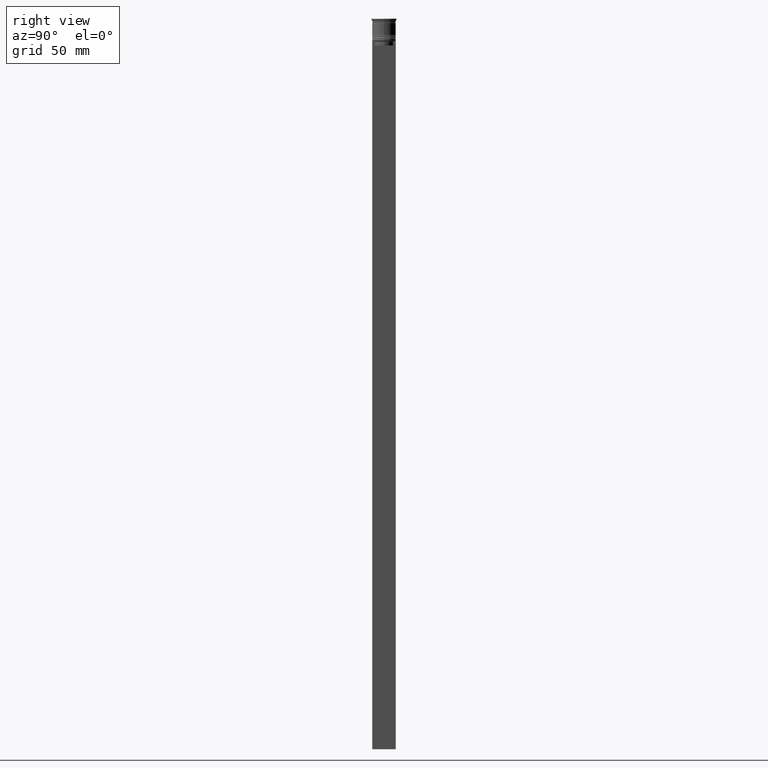
[diagram: clean part render]
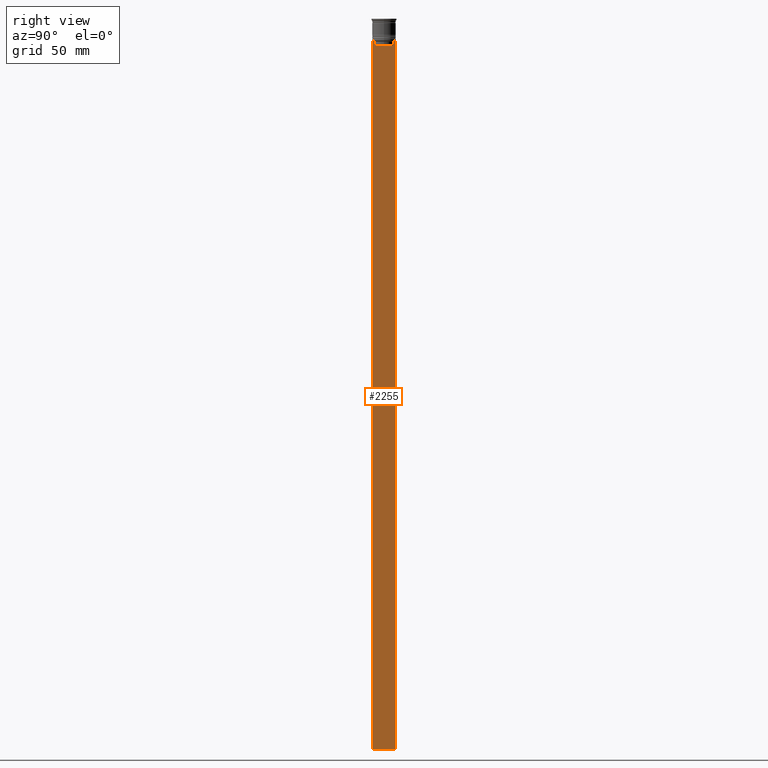
[diagram: same view with one face highlighted and labeled with its STEP entity id]
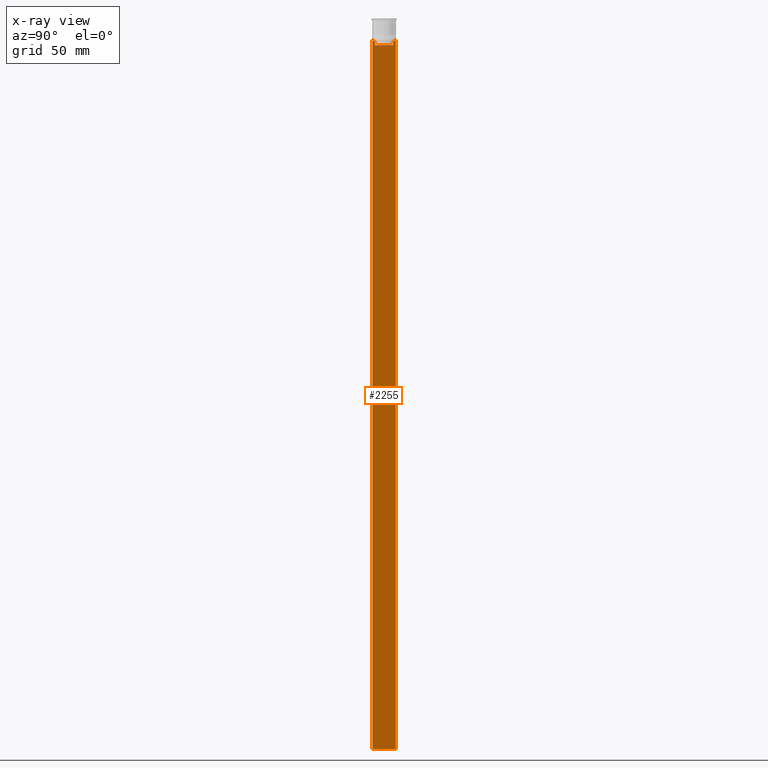
[diagram: x-ray of the same camera — body ghosted, the highlighted face saturated]
A machine part, right view. The second image highlights one B-rep face of the part: STEP entity #2255.
The next image is the same camera in x-ray: the body ghosted, the highlighted face saturated — about 0% of this face is hidden behind the body in this view.
In plain terms, the highlighted planar face has unit normal (-1, 0, 0).
Its self-contained STEP definition (entity closure, byte-faithful):
#5 = ORIENTED_EDGE ( 'NONE', *, *, #339, .T. ) ;
#8 = CARTESIAN_POINT ( 'NONE',  ( 0.5000000000000000000, -7.499999999999999112, 1.033296378372908997 ) ) ;
#13 = LINE ( 'NONE', #2117, #2266 ) ;
#123 = CARTESIAN_POINT ( 'NONE',  ( 0.5000000000000000000, 7.500000000000002665, 1.033296378372908997 ) ) ;
#124 = LINE ( 'NONE', #2193, #412 ) ;
#170 = DIRECTION ( 'NONE',  ( -1.000000000000000000, 0.000000000000000000, 0.000000000000000000 ) ) ;
#185 = ORIENTED_EDGE ( 'NONE', *, *, #1271, .T. ) ;
#193 = EDGE_CURVE ( 'NONE', #1096, #2260, #477, .T. ) ;
#221 = LINE ( 'NONE', #1364, #1707 ) ;
#271 = EDGE_CURVE ( 'NONE', #2439, #1519, #2192, .T. ) ;
#280 = VERTEX_POINT ( 'NONE', #1039 ) ;
#284 = ORIENTED_EDGE ( 'NONE', *, *, #1092, .T. ) ;
#325 = ORIENTED_EDGE ( 'NONE', *, *, #2140, .T. ) ;
#339 = EDGE_CURVE ( 'NONE', #495, #1240, #221, .T. ) ;
#343 = EDGE_CURVE ( 'NONE', #1240, #1519, #801, .T. ) ;
#360 = CARTESIAN_POINT ( 'NONE',  ( 0.5000000000000000000, 5.878775382679625849, -17.00000000000000000 ) ) ;
#365 = DIRECTION ( 'NONE',  ( 0.000000000000000000, 1.000000000000000000, 0.000000000000000000 ) ) ;
#404 = EDGE_CURVE ( 'NONE', #575, #280, #2296, .T. ) ;
#406 = CARTESIAN_POINT ( 'NONE',  ( 0.5000000000000000000, 6.213239387491007015, -14.16668843563492430 ) ) ;
#412 = VECTOR ( 'NONE', #1662, 1000.000000000000000 ) ;
#454 = VECTOR ( 'NONE', #2108, 1000.000000000000000 ) ;
#455 = B_SPLINE_CURVE_WITH_KNOTS ( 'NONE', 3,
 ( #846, #1234, #2171, #1801 ),
 .UNSPECIFIED., .F., .F.,
 ( 4, 4 ),
 ( 0.02765270321082434479, 0.02836198271238431559 ),
 .UNSPECIFIED. ) ;
#463 = DIRECTION ( 'NONE',  ( 0.000000000000000000, 0.000000000000000000, -1.000000000000000000 ) ) ;
#477 = LINE ( 'NONE', #516, #750 ) ;
#495 = VERTEX_POINT ( 'NONE', #1580 ) ;
#516 = CARTESIAN_POINT ( 'NONE',  ( 0.5000000000000000000, -5.878775382679625849, 0.000000000000000000 ) ) ;
#520 = CARTESIAN_POINT ( 'NONE',  ( 0.5000000000000000000, -5.878775382679625849, -17.00000000000000000 ) ) ;
#524 = ORIENTED_EDGE ( 'NONE', *, *, #271, .F. ) ;
#530 = LINE ( 'NONE', #1435, #1050 ) ;
#552 = ORIENTED_EDGE ( 'NONE', *, *, #1864, .T. ) ;
#571 = CARTESIAN_POINT ( 'NONE',  ( 0.5000000000000000000, 6.380438856379706536, -14.00000000000000178 ) ) ;
#575 = VERTEX_POINT ( 'NONE', #1605 ) ;
#586 = VECTOR ( 'NONE', #1980, 1000.000000000000000 ) ;
#591 = DIRECTION ( 'NONE',  ( 0.000000000000000000, 0.000000000000000000, 1.000000000000000000 ) ) ;
#684 = CARTESIAN_POINT ( 'NONE',  ( 0.5000000000000000000, -7.383088784512886527, -14.00000000000000178 ) ) ;
#750 = VECTOR ( 'NONE', #1611, 1000.000000000000000 ) ;
#757 = DIRECTION ( 'NONE',  ( 0.000000000000000000, -1.000000000000000000, 0.000000000000000000 ) ) ;
#759 = CARTESIAN_POINT ( 'NONE',  ( 0.5000000000000000000, 7.383088784512886527, -14.00000000000000178 ) ) ;
#801 = LINE ( 'NONE', #2314, #2480 ) ;
#809 = VERTEX_POINT ( 'NONE', #759 ) ;
#846 = CARTESIAN_POINT ( 'NONE',  ( 0.5000000000000000000, -5.878775382679625849, -14.50000000000000000 ) ) ;
#908 = DIRECTION ( 'NONE',  ( 0.000000000000000000, 0.000000000000000000, -1.000000000000000000 ) ) ;
#912 = EDGE_CURVE ( 'NONE', #1221, #1096, #1311, .T. ) ;
#924 = LINE ( 'NONE', #2445, #1218 ) ;
#926 = EDGE_CURVE ( 'NONE', #2260, #1555, #455, .T. ) ;
#936 = AXIS2_PLACEMENT_3D ( 'NONE', #8, #170, #591 ) ;
#964 = CARTESIAN_POINT ( 'NONE',  ( 0.5000000000000000000, -7.499999999999999112, -464.0000000000000000 ) ) ;
#1039 = CARTESIAN_POINT ( 'NONE',  ( 0.5000000000000000000, 5.878775382679625849, -14.50000000000000000 ) ) ;
#1050 = VECTOR ( 'NONE', #908, 1000.000000000000000 ) ;
#1090 = VERTEX_POINT ( 'NONE', #684 ) ;
#1092 = EDGE_CURVE ( 'NONE', #280, #1221, #530, .T. ) ;
#1096 = VERTEX_POINT ( 'NONE', #520 ) ;
#1105 = VECTOR ( 'NONE', #463, 1000.000000000000000 ) ;
#1218 = VECTOR ( 'NONE', #1289, 1000.000000000000000 ) ;
#1221 = VERTEX_POINT ( 'NONE', #360 ) ;
#1234 = CARTESIAN_POINT ( 'NONE',  ( 0.5000000000000000000, -6.046019991840948293, -14.33335703538585726 ) ) ;
#1240 = VERTEX_POINT ( 'NONE', #964 ) ;
#1254 = CARTESIAN_POINT ( 'NONE',  ( 0.5000000000000000000, -6.380438856379706536, -14.00000000000000178 ) ) ;
#1270 = CARTESIAN_POINT ( 'NONE',  ( 0.5000000000000000000, 7.500000000000002665, -464.0000000000000000 ) ) ;
#1271 = EDGE_CURVE ( 'NONE', #2439, #809, #13, .T. ) ;
#1289 = DIRECTION ( 'NONE',  ( 0.000000000000000000, -1.000000000000000000, 0.000000000000000000 ) ) ;
#1311 = LINE ( 'NONE', #1397, #586 ) ;
#1316 = CARTESIAN_POINT ( 'NONE',  ( 0.5000000000000000000, -5.878775382679625849, -14.50000000000000000 ) ) ;
#1336 = DIRECTION ( 'NONE',  ( 0.000000000000000000, 0.000000000000000000, -1.000000000000000000 ) ) ;
#1364 = CARTESIAN_POINT ( 'NONE',  ( 0.5000000000000000000, -7.499999999999999112, 1.033296378372908997 ) ) ;
#1369 = ORIENTED_EDGE ( 'NONE', *, *, #1561, .T. ) ;
#1397 = CARTESIAN_POINT ( 'NONE',  ( 0.5000000000000000000, 5.899999999999998579, -17.00000000000000000 ) ) ;
#1420 = ORIENTED_EDGE ( 'NONE', *, *, #912, .T. ) ;
#1435 = CARTESIAN_POINT ( 'NONE',  ( 0.5000000000000000000, 5.878775382679625849, 0.000000000000000000 ) ) ;
#1489 = ORIENTED_EDGE ( 'NONE', *, *, #193, .T. ) ;
#1519 = VERTEX_POINT ( 'NONE', #1270 ) ;
#1555 = VERTEX_POINT ( 'NONE', #1254 ) ;
#1561 = EDGE_CURVE ( 'NONE', #1555, #1090, #124, .T. ) ;
#1568 = EDGE_LOOP ( 'NONE', ( #552, #2449, #284, #1420, #1489, #2263, #1369, #325, #5, #1608, #524, #185 ) ) ;
#1580 = CARTESIAN_POINT ( 'NONE',  ( 0.5000000000000000000, -7.499999999999999112, -14.00000000000000178 ) ) ;
#1605 = CARTESIAN_POINT ( 'NONE',  ( 0.5000000000000000000, 6.380438856379706536, -14.00000000000000178 ) ) ;
#1608 = ORIENTED_EDGE ( 'NONE', *, *, #343, .T. ) ;
#1611 = DIRECTION ( 'NONE',  ( -0.000000000000000000, -0.000000000000000000, 1.000000000000000000 ) ) ;
#1662 = DIRECTION ( 'NONE',  ( 0.000000000000000000, -1.000000000000000000, 0.000000000000000000 ) ) ;
#1691 = LINE ( 'NONE', #1918, #454 ) ;
#1707 = VECTOR ( 'NONE', #1336, 1000.000000000000000 ) ;
#1754 = CARTESIAN_POINT ( 'NONE',  ( 0.5000000000000000000, 5.878775382679625849, -14.50000000000000000 ) ) ;
#1801 = CARTESIAN_POINT ( 'NONE',  ( 0.5000000000000000000, -6.380438856379706536, -14.00000000000000178 ) ) ;
#1864 = EDGE_CURVE ( 'NONE', #809, #575, #1691, .T. ) ;
#1918 = CARTESIAN_POINT ( 'NONE',  ( 0.5000000000000000000, -7.499999999999999112, -14.00000000000000178 ) ) ;
#1947 = FACE_OUTER_BOUND ( 'NONE', #1568, .T. ) ;
#1980 = DIRECTION ( 'NONE',  ( 0.000000000000000000, -1.000000000000000000, 0.000000000000000000 ) ) ;
#2108 = DIRECTION ( 'NONE',  ( 0.000000000000000000, -1.000000000000000000, 0.000000000000000000 ) ) ;
#2117 = CARTESIAN_POINT ( 'NONE',  ( 0.5000000000000000000, -7.499999999999999112, -14.00000000000000178 ) ) ;
#2134 = CARTESIAN_POINT ( 'NONE',  ( 0.5000000000000000000, 6.046020074006152711, -14.33335695351623151 ) ) ;
#2140 = EDGE_CURVE ( 'NONE', #1090, #495, #924, .T. ) ;
#2171 = CARTESIAN_POINT ( 'NONE',  ( 0.5000000000000000000, -6.213239311785844876, -14.16668851110870087 ) ) ;
#2192 = LINE ( 'NONE', #123, #1105 ) ;
#2193 = CARTESIAN_POINT ( 'NONE',  ( 0.5000000000000000000, -7.499999999999999112, -14.00000000000000178 ) ) ;
#2200 = CARTESIAN_POINT ( 'NONE',  ( 0.5000000000000000000, 7.500000000000002665, -14.00000000000000178 ) ) ;
#2255 = ADVANCED_FACE ( 'NONE', ( #1947 ), #2490, .F. ) ;
#2260 = VERTEX_POINT ( 'NONE', #1316 ) ;
#2263 = ORIENTED_EDGE ( 'NONE', *, *, #926, .T. ) ;
#2266 = VECTOR ( 'NONE', #757, 1000.000000000000000 ) ;
#2296 = B_SPLINE_CURVE_WITH_KNOTS ( 'NONE', 3,
 ( #571, #406, #2134, #1754 ),
 .UNSPECIFIED., .F., .F.,
 ( 4, 4 ),
 ( 0.01087727669788152163, 0.01158556069794289788 ),
 .UNSPECIFIED. ) ;
#2314 = CARTESIAN_POINT ( 'NONE',  ( 0.5000000000000000000, -7.499999999999999112, -464.0000000000000000 ) ) ;
#2439 = VERTEX_POINT ( 'NONE', #2200 ) ;
#2445 = CARTESIAN_POINT ( 'NONE',  ( 0.5000000000000000000, -7.499999999999999112, -14.00000000000000178 ) ) ;
#2449 = ORIENTED_EDGE ( 'NONE', *, *, #404, .T. ) ;
#2480 = VECTOR ( 'NONE', #365, 1000.000000000000000 ) ;
#2490 = PLANE ( 'NONE',  #936 ) ;